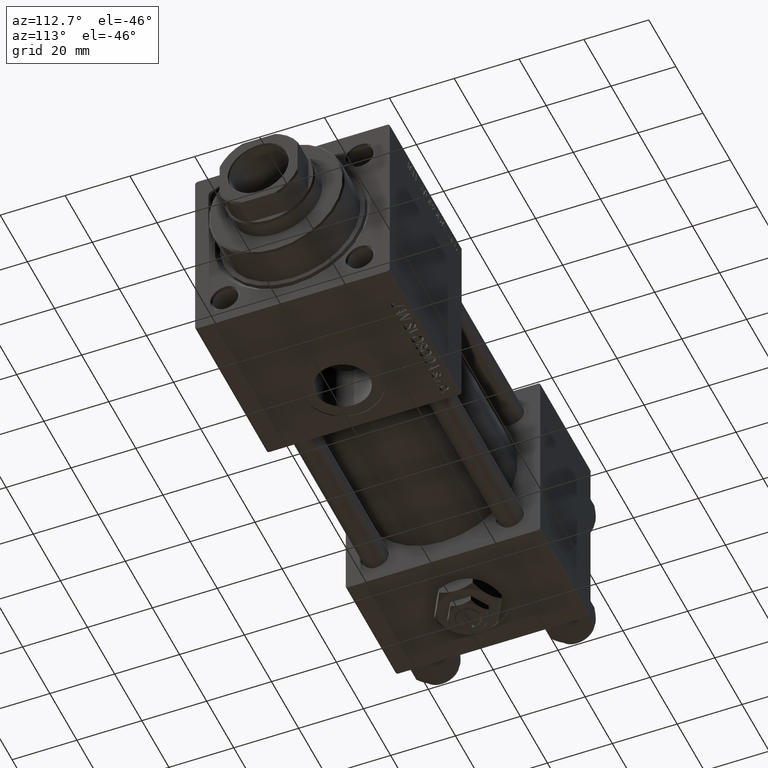
[diagram: clean part render]
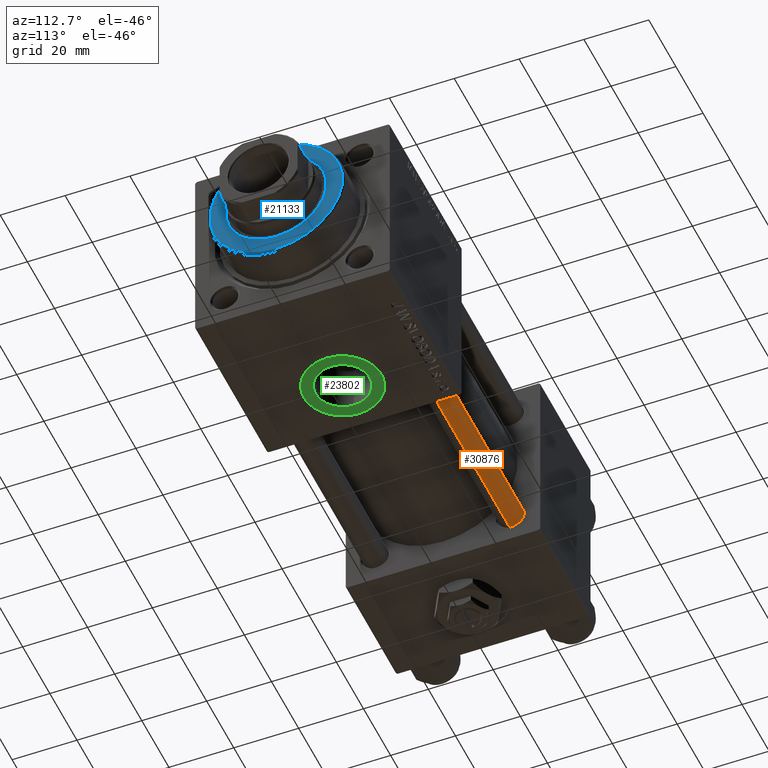
[diagram: same view with three faces highlighted in distinct colors, each labeled with its STEP entity id]
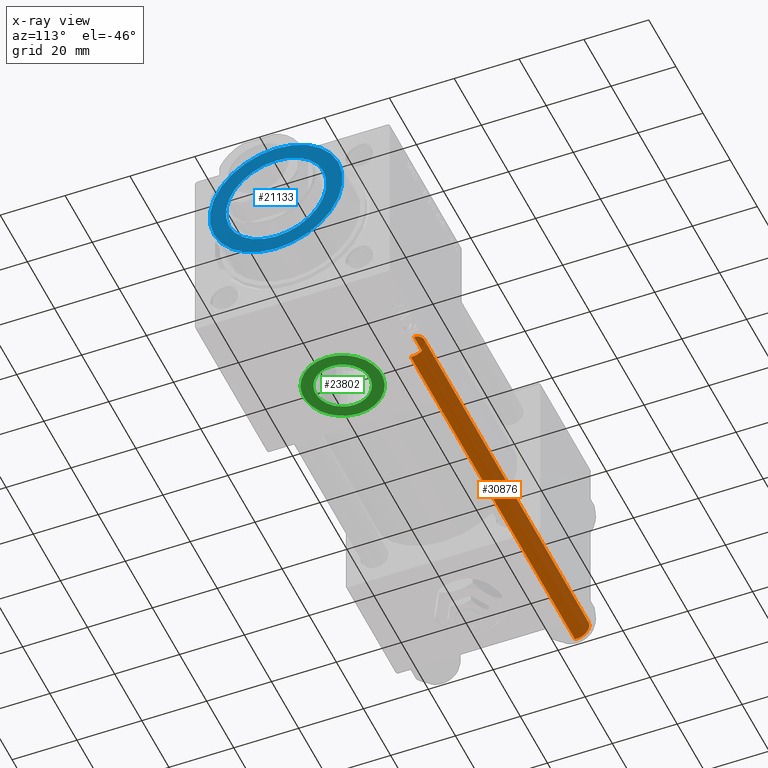
[diagram: x-ray of the same camera — body ghosted, the three highlighted faces saturated]
A machine part, auxiliary view with three faces highlighted in distinct colors.
The next image is the same camera in x-ray (body ghosted, the three faces saturated) — at least one of them is partly hidden behind the body in this view.
Their STEP definitions:

[orange] entity #30876 — the highlighted cylindrical surface (edge-blend (fillet) strip) has radius 4 mm, axis along (1, -0, 0).
#1220 = CARTESIAN_POINT ( 'NONE',  ( 0.000000000000000000, 0.000000000000000000, 122.0000000000000000 ) ) ;
#1374 = VECTOR ( 'NONE', #4641, 1000.000000000000000 ) ;
#1466 = FACE_OUTER_BOUND ( 'NONE', #13795, .T. ) ;
#1912 = VERTEX_POINT ( 'NONE', #25012 ) ;
#4641 = DIRECTION ( 'NONE',  ( -0.000000000000000000, -0.000000000000000000, -1.000000000000000000 ) ) ;
#6145 = EDGE_CURVE ( 'NONE', #26766, #25865, #35475, .T. ) ;
#8599 = LINE ( 'NONE', #15997, #1374 ) ;
#8695 = CARTESIAN_POINT ( 'NONE',  ( -4.000000000000000000, 0.000000000000000000, 121.5000000000000426 ) ) ;
#9485 = ORIENTED_EDGE ( 'NONE', *, *, #20921, .T. ) ;
#10223 = EDGE_CURVE ( 'NONE', #26766, #19740, #36677, .T. ) ;
#11979 = ORIENTED_EDGE ( 'NONE', *, *, #20467, .T. ) ;
#13347 = CYLINDRICAL_SURFACE ( 'NONE', #42969, 4.000000000000000000 ) ;
#13795 = EDGE_LOOP ( 'NONE', ( #29382, #9485, #11979, #27712 ) ) ;
#15997 = CARTESIAN_POINT ( 'NONE',  ( 4.000000000000000000, 4.898587196589411843E-16, 122.0000000000000000 ) ) ;
#17564 = DIRECTION ( 'NONE',  ( -1.000000000000000000, 0.000000000000000000, 0.000000000000000000 ) ) ;
#18026 = CARTESIAN_POINT ( 'NONE',  ( 0.000000000000000000, 0.000000000000000000, 121.5000000000000426 ) ) ;
#19740 = VERTEX_POINT ( 'NONE', #28978 ) ;
#19923 = CIRCLE ( 'NONE', #49507, 4.000000000000000000 ) ;
#20467 = EDGE_CURVE ( 'NONE', #1912, #19740, #19923, .T. ) ;
#20921 = EDGE_CURVE ( 'NONE', #25865, #1912, #8599, .T. ) ;
#22426 = DIRECTION ( 'NONE',  ( -0.000000000000000000, -0.000000000000000000, 1.000000000000000000 ) ) ;
#25012 = CARTESIAN_POINT ( 'NONE',  ( 4.000000000000000000, 4.898587196589411843E-16, 0.5000000000000559552 ) ) ;
#25539 = DIRECTION ( 'NONE',  ( -0.000000000000000000, -0.000000000000000000, -1.000000000000000000 ) ) ;
#25865 = VERTEX_POINT ( 'NONE', #31688 ) ;
#26001 = DIRECTION ( 'NONE',  ( -0.000000000000000000, -0.000000000000000000, -1.000000000000000000 ) ) ;
#26766 = VERTEX_POINT ( 'NONE', #8695 ) ;
#27712 = ORIENTED_EDGE ( 'NONE', *, *, #10223, .F. ) ;
#28978 = CARTESIAN_POINT ( 'NONE',  ( -4.000000000000000000, 0.000000000000000000, 0.5000000000000559552 ) ) ;
#29382 = ORIENTED_EDGE ( 'NONE', *, *, #6145, .T. ) ;
#30876 = ADVANCED_FACE ( 'NONE', ( #1466 ), #13347, .T. ) ;
#31688 = CARTESIAN_POINT ( 'NONE',  ( 4.000000000000000000, 4.898587196589411843E-16, 121.5000000000000426 ) ) ;
#34151 = DIRECTION ( 'NONE',  ( 1.000000000000000000, 0.000000000000000000, 0.000000000000000000 ) ) ;
#35366 = CARTESIAN_POINT ( 'NONE',  ( 0.000000000000000000, 0.000000000000000000, 0.5000000000000559552 ) ) ;
#35475 = CIRCLE ( 'NONE', #44785, 4.000000000000000000 ) ;
#36677 = LINE ( 'NONE', #37459, #43225 ) ;
#37459 = CARTESIAN_POINT ( 'NONE',  ( -4.000000000000000000, 0.000000000000000000, 122.0000000000000000 ) ) ;
#38103 = DIRECTION ( 'NONE',  ( 0.000000000000000000, 0.000000000000000000, -1.000000000000000000 ) ) ;
#42969 = AXIS2_PLACEMENT_3D ( 'NONE', #1220, #26001, #17564 ) ;
#43225 = VECTOR ( 'NONE', #25539, 1000.000000000000000 ) ;
#44785 = AXIS2_PLACEMENT_3D ( 'NONE', #18026, #38103, #34151 ) ;
#47027 = DIRECTION ( 'NONE',  ( 1.000000000000000000, 0.000000000000000000, 0.000000000000000000 ) ) ;
#49507 = AXIS2_PLACEMENT_3D ( 'NONE', #35366, #22426, #47027 ) ;

[blue] entity #21133 — the highlighted planar face has unit normal (1, 0, 0).
#176 = CARTESIAN_POINT ( 'NONE',  ( -20.49999999999999645, 0.000000000000000000, 40.70000000000000284 ) ) ;
#1359 = ORIENTED_EDGE ( 'NONE', *, *, #41268, .F. ) ;
#2240 = DIRECTION ( 'NONE',  ( 0.000000000000000000, 0.000000000000000000, 1.000000000000000000 ) ) ;
#3833 = EDGE_CURVE ( 'NONE', #30464, #5240, #4145, .T. ) ;
#4145 = CIRCLE ( 'NONE', #36232, 15.50000000000000000 ) ;
#4518 = DIRECTION ( 'NONE',  ( 1.000000000000000000, 0.000000000000000000, 0.000000000000000000 ) ) ;
#5240 = VERTEX_POINT ( 'NONE', #37267 ) ;
#5592 = AXIS2_PLACEMENT_3D ( 'NONE', #42929, #2240, #39199 ) ;
#7032 = DIRECTION ( 'NONE',  ( 0.000000000000000000, 0.000000000000000000, 1.000000000000000000 ) ) ;
#7108 = CARTESIAN_POINT ( 'NONE',  ( -15.50000000000000000, 1.898202538678397557E-15, 40.70000000000000284 ) ) ;
#8051 = ORIENTED_EDGE ( 'NONE', *, *, #15038, .T. ) ;
#8079 = DIRECTION ( 'NONE',  ( 1.000000000000000000, 0.000000000000000000, 0.000000000000000000 ) ) ;
#8739 = CARTESIAN_POINT ( 'NONE',  ( 0.000000000000000000, 0.000000000000000000, 40.70000000000000284 ) ) ;
#10590 = CIRCLE ( 'NONE', #46902, 20.49999999999999645 ) ;
#10671 = FACE_BOUND ( 'NONE', #14569, .T. ) ;
#13082 = CARTESIAN_POINT ( 'NONE',  ( 20.49999999999999645, 2.541142108230757480E-15, 40.70000000000000284 ) ) ;
#13197 = VERTEX_POINT ( 'NONE', #176 ) ;
#13663 = CARTESIAN_POINT ( 'NONE',  ( 0.000000000000000000, 0.000000000000000000, 40.70000000000000284 ) ) ;
#14569 = EDGE_LOOP ( 'NONE', ( #1359, #42681 ) ) ;
#15038 = EDGE_CURVE ( 'NONE', #50772, #13197, #48359, .T. ) ;
#15300 = AXIS2_PLACEMENT_3D ( 'NONE', #8739, #40713, #4518 ) ;
#19057 = CARTESIAN_POINT ( 'NONE',  ( 0.000000000000000000, 0.000000000000000000, 40.70000000000000284 ) ) ;
#21133 = ADVANCED_FACE ( 'NONE', ( #10671, #23075 ), #43183, .T. ) ;
#23075 = FACE_OUTER_BOUND ( 'NONE', #38087, .T. ) ;
#24765 = EDGE_CURVE ( 'NONE', #13197, #50772, #10590, .T. ) ;
#26930 = CARTESIAN_POINT ( 'NONE',  ( 0.000000000000000000, 0.000000000000000000, 40.70000000000000284 ) ) ;
#28778 = CIRCLE ( 'NONE', #15300, 15.50000000000000000 ) ;
#30464 = VERTEX_POINT ( 'NONE', #7108 ) ;
#30911 = DIRECTION ( 'NONE',  ( 0.000000000000000000, 0.000000000000000000, 1.000000000000000000 ) ) ;
#34662 = DIRECTION ( 'NONE',  ( 0.000000000000000000, 0.000000000000000000, 1.000000000000000000 ) ) ;
#34928 = DIRECTION ( 'NONE',  ( 1.000000000000000000, 0.000000000000000000, 0.000000000000000000 ) ) ;
#36232 = AXIS2_PLACEMENT_3D ( 'NONE', #13663, #7032, #8079 ) ;
#37267 = CARTESIAN_POINT ( 'NONE',  ( 15.50000000000000000, 0.000000000000000000, 40.70000000000000284 ) ) ;
#37883 = ORIENTED_EDGE ( 'NONE', *, *, #24765, .T. ) ;
#38087 = EDGE_LOOP ( 'NONE', ( #37883, #8051 ) ) ;
#39199 = DIRECTION ( 'NONE',  ( 1.000000000000000000, 0.000000000000000000, -0.000000000000000000 ) ) ;
#40713 = DIRECTION ( 'NONE',  ( 0.000000000000000000, 0.000000000000000000, 1.000000000000000000 ) ) ;
#41268 = EDGE_CURVE ( 'NONE', #5240, #30464, #28778, .T. ) ;
#41594 = AXIS2_PLACEMENT_3D ( 'NONE', #26930, #30911, #47059 ) ;
#42681 = ORIENTED_EDGE ( 'NONE', *, *, #3833, .F. ) ;
#42929 = CARTESIAN_POINT ( 'NONE',  ( 0.000000000000000000, 0.000000000000000000, 40.70000000000000284 ) ) ;
#43183 = PLANE ( 'NONE',  #5592 ) ;
#46902 = AXIS2_PLACEMENT_3D ( 'NONE', #19057, #34662, #34928 ) ;
#47059 = DIRECTION ( 'NONE',  ( 1.000000000000000000, 0.000000000000000000, 0.000000000000000000 ) ) ;
#48359 = CIRCLE ( 'NONE', #41594, 20.49999999999999645 ) ;
#50772 = VERTEX_POINT ( 'NONE', #13082 ) ;

[green] entity #23802 — the highlighted planar face has unit normal (0, 0, -1).
#1494 = DIRECTION ( 'NONE',  ( 0.000000000000000000, 0.000000000000000000, -1.000000000000000000 ) ) ;
#3103 = FACE_BOUND ( 'NONE', #36161, .T. ) ;
#4229 = VERTEX_POINT ( 'NONE', #26767 ) ;
#5356 = CARTESIAN_POINT ( 'NONE',  ( 111.0000000000000000, 3.469446951953613794E-15, -29.79999999999999716 ) ) ;
#5409 = VERTEX_POINT ( 'NONE', #24785 ) ;
#7861 = CIRCLE ( 'NONE', #50062, 11.99999999999999645 ) ;
#10904 = ORIENTED_EDGE ( 'NONE', *, *, #29580, .F. ) ;
#13999 = AXIS2_PLACEMENT_3D ( 'NONE', #19201, #15244, #47505 ) ;
#14925 = DIRECTION ( 'NONE',  ( 0.000000000000000000, 0.000000000000000000, -1.000000000000000000 ) ) ;
#15244 = DIRECTION ( 'NONE',  ( 0.000000000000000000, 0.000000000000000000, -1.000000000000000000 ) ) ;
#16056 = VERTEX_POINT ( 'NONE', #34819 ) ;
#16486 = EDGE_CURVE ( 'NONE', #4229, #22254, #7861, .T. ) ;
#17589 = DIRECTION ( 'NONE',  ( -1.000000000000000000, 0.000000000000000000, 0.000000000000000000 ) ) ;
#19201 = CARTESIAN_POINT ( 'NONE',  ( 111.0000000000000000, 3.469446951953613794E-15, -29.79999999999999716 ) ) ;
#21457 = DIRECTION ( 'NONE',  ( 0.000000000000000000, 0.000000000000000000, -1.000000000000000000 ) ) ;
#21786 = AXIS2_PLACEMENT_3D ( 'NONE', #49603, #1494, #17589 ) ;
#22254 = VERTEX_POINT ( 'NONE', #38505 ) ;
#23802 = ADVANCED_FACE ( 'NONE', ( #3103, #42513 ), #39043, .T. ) ;
#23901 = DIRECTION ( 'NONE',  ( -1.000000000000000000, 0.000000000000000000, 0.000000000000000000 ) ) ;
#24426 = AXIS2_PLACEMENT_3D ( 'NONE', #42241, #51201, #34545 ) ;
#24688 = ORIENTED_EDGE ( 'NONE', *, *, #47685, .F. ) ;
#24785 = CARTESIAN_POINT ( 'NONE',  ( 119.3300000000000125, 4.489577735643358162E-15, -29.79999999999999716 ) ) ;
#26767 = CARTESIAN_POINT ( 'NONE',  ( 123.0000000000000000, 4.939023110930435178E-15, -29.79999999999999716 ) ) ;
#29580 = EDGE_CURVE ( 'NONE', #5409, #16056, #37005, .T. ) ;
#29894 = DIRECTION ( 'NONE',  ( -1.000000000000000000, 0.000000000000000000, 0.000000000000000000 ) ) ;
#31550 = CIRCLE ( 'NONE', #42561, 8.330000000000003624 ) ;
#32640 = EDGE_CURVE ( 'NONE', #22254, #4229, #52298, .T. ) ;
#34545 = DIRECTION ( 'NONE',  ( -1.000000000000000000, 0.000000000000000000, 0.000000000000000000 ) ) ;
#34819 = CARTESIAN_POINT ( 'NONE',  ( 102.6700000000000017, 3.469446951953613794E-15, -29.79999999999999716 ) ) ;
#36161 = EDGE_LOOP ( 'NONE', ( #24688, #10904 ) ) ;
#37005 = CIRCLE ( 'NONE', #21786, 8.330000000000003624 ) ;
#38505 = CARTESIAN_POINT ( 'NONE',  ( 99.00000000000000000, 3.469446951953613794E-15, -29.79999999999999716 ) ) ;
#39043 = PLANE ( 'NONE',  #13999 ) ;
#42241 = CARTESIAN_POINT ( 'NONE',  ( 111.0000000000000000, 3.469446951953613794E-15, -29.79999999999999716 ) ) ;
#42513 = FACE_OUTER_BOUND ( 'NONE', #44621, .T. ) ;
#42561 = AXIS2_PLACEMENT_3D ( 'NONE', #5356, #21457, #29894 ) ;
#43737 = CARTESIAN_POINT ( 'NONE',  ( 111.0000000000000000, 3.469446951953613794E-15, -29.79999999999999716 ) ) ;
#44621 = EDGE_LOOP ( 'NONE', ( #49333, #50990 ) ) ;
#47505 = DIRECTION ( 'NONE',  ( -1.000000000000000000, 0.000000000000000000, -0.000000000000000000 ) ) ;
#47685 = EDGE_CURVE ( 'NONE', #16056, #5409, #31550, .T. ) ;
#49333 = ORIENTED_EDGE ( 'NONE', *, *, #32640, .T. ) ;
#49603 = CARTESIAN_POINT ( 'NONE',  ( 111.0000000000000000, 3.469446951953613794E-15, -29.79999999999999716 ) ) ;
#50062 = AXIS2_PLACEMENT_3D ( 'NONE', #43737, #14925, #23901 ) ;
#50990 = ORIENTED_EDGE ( 'NONE', *, *, #16486, .T. ) ;
#51201 = DIRECTION ( 'NONE',  ( 0.000000000000000000, 0.000000000000000000, -1.000000000000000000 ) ) ;
#52298 = CIRCLE ( 'NONE', #24426, 11.99999999999999645 ) ;